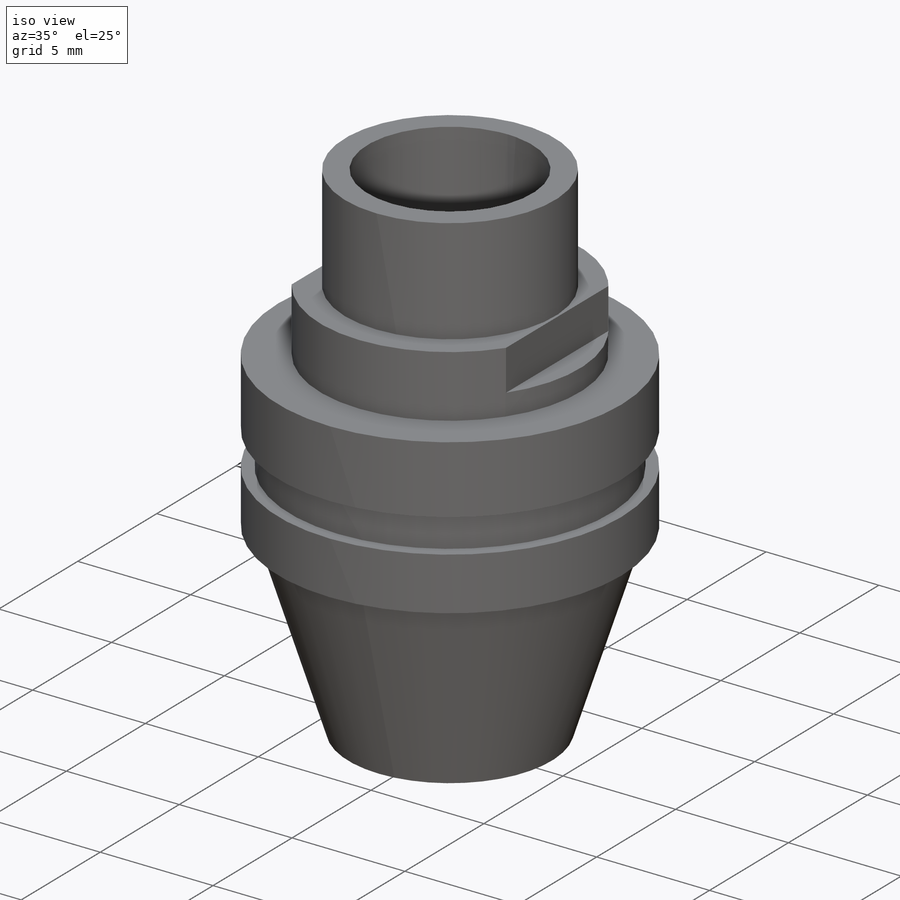
[diagram: iso view]
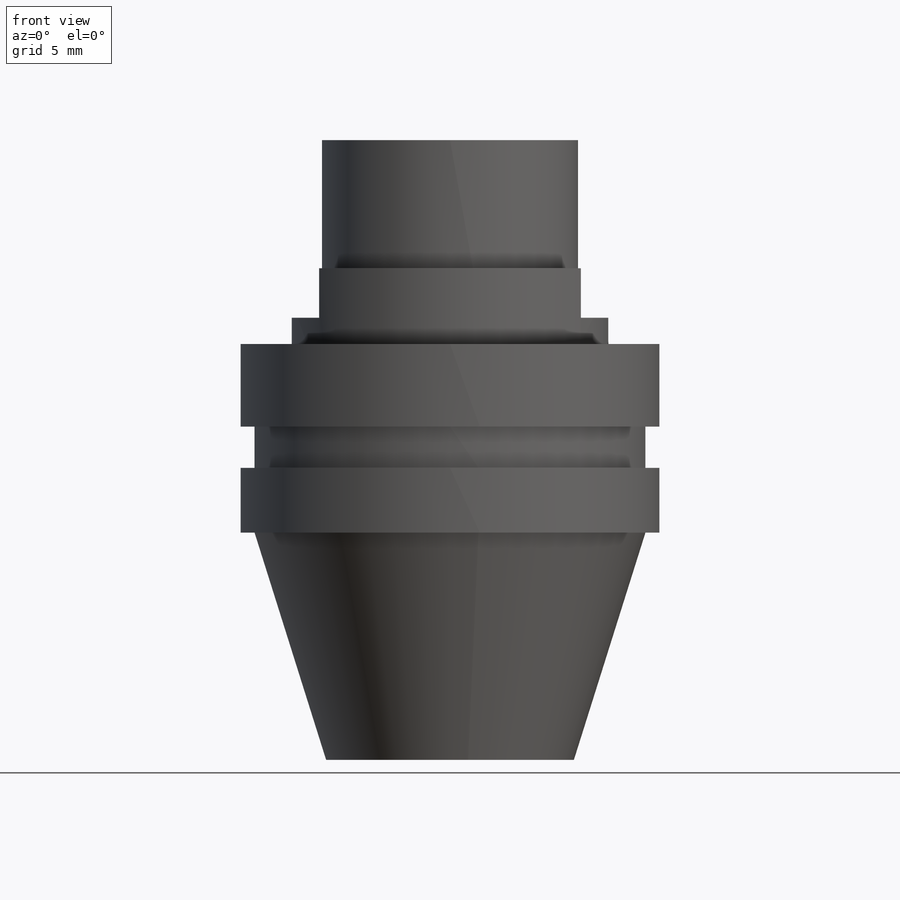
[diagram: front view]
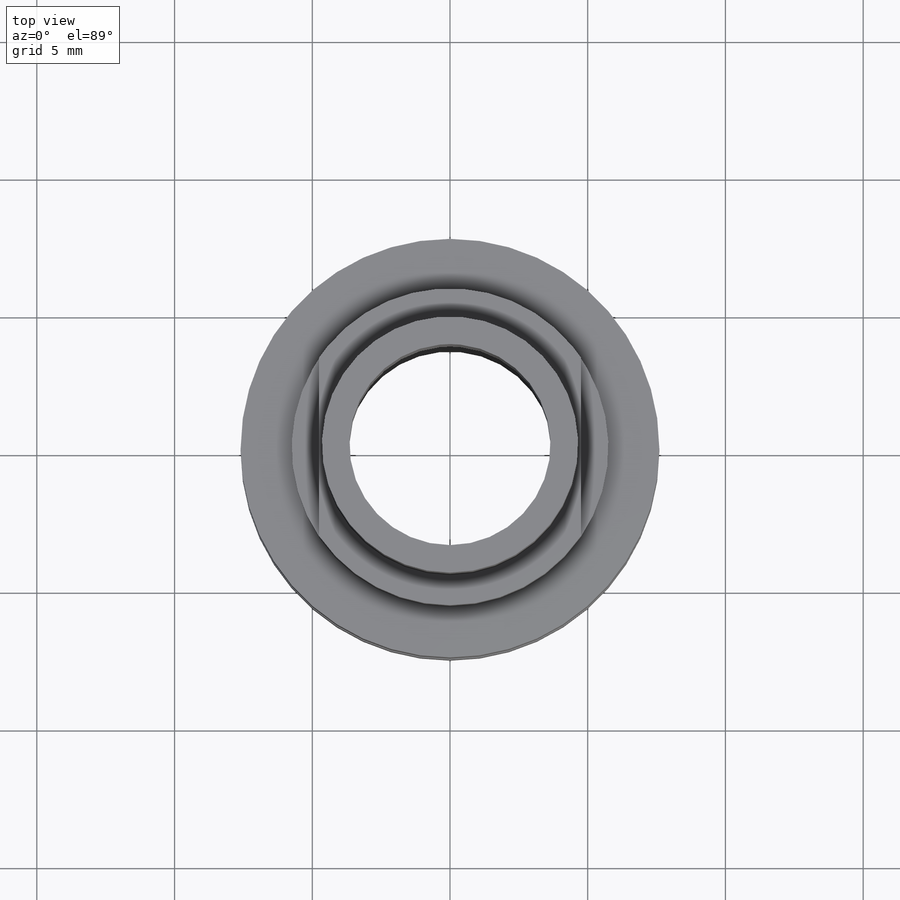
[diagram: top view]
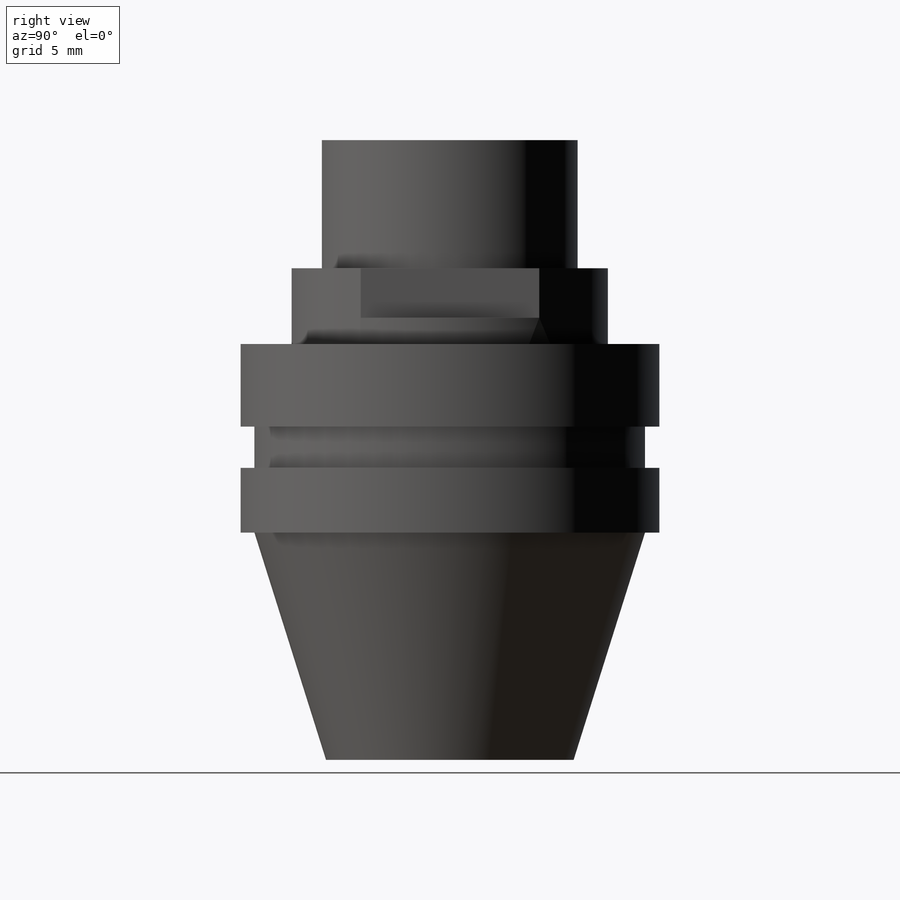
[diagram: right view]
SOLIDWORKS PART (.sldprt)
format: sldprt  version: not decoded by parser v0  size: 181,760 bytes
history: native  units: mm
features: sketch x3, cut_extrude x2, material x1, revolve x1, shell x1 (+13 scaffold rows collapsed)
feature tree (21):
  scaffold x13  (default folders/planes/origin — collapsed)
  material  "Material <not specified>"
  sketch  "Sketch1"  dims[D1=22.5mm D2=4.65mm D3=4.65mm D4=5.75mm D5=2.75mm D6=7.6mm D7=3.0mm D8=1.5mm D9=0.5mm D10=8.25mm D11=4.5mm D12=0.5mm]
  revolve  "Revolve1"  Angle=360deg
  sketch  "Sketch2"  dims[D1=9.5mm]
  cut_extrude  "Cut-Extrude1"  Depth=1.8mm
  shell  "Shell1"  Thickness=1mm
  sketch  "Sketch3"  dims[D1=~2.505307mm]
  cut_extrude  "Cut-Extrude2"  Depth=6.8mm
decode coverage: 7 of 7 modeling features carry decoded parameters
note: ~ marks probable driven/reference dimensions
note: suppression state not decoded; provenance and decode notes live in map.json
